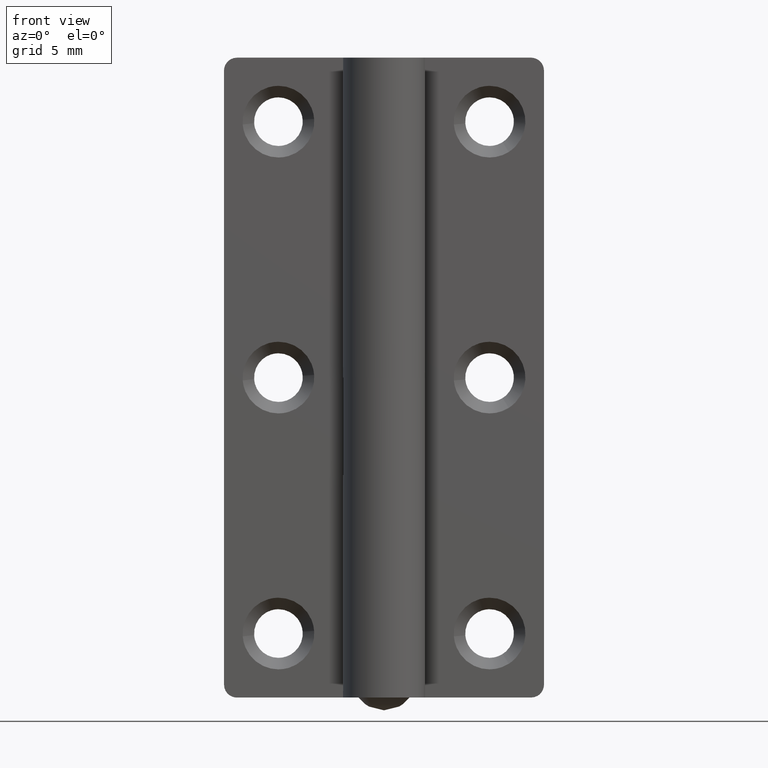
[diagram: clean part render]
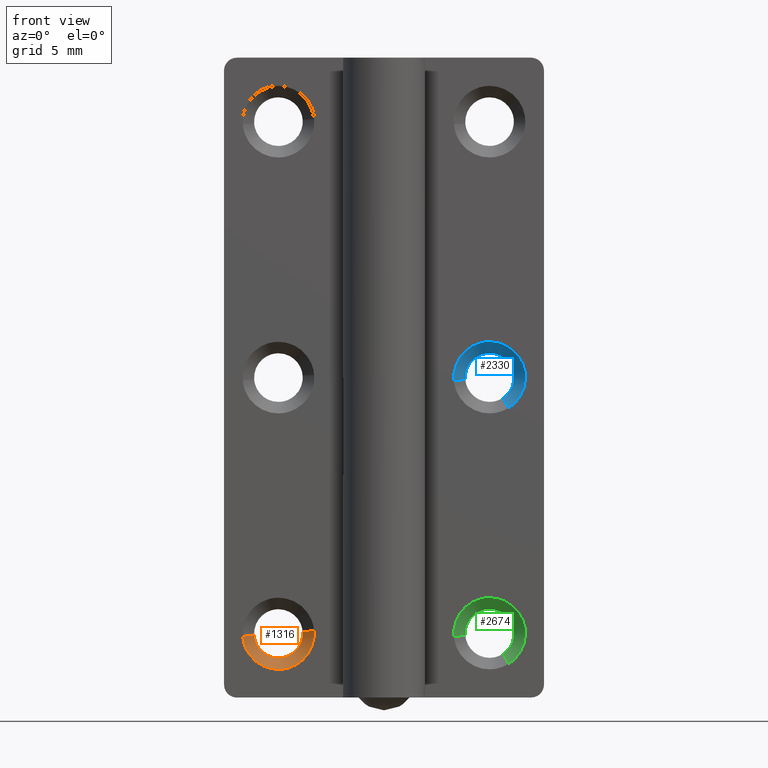
[diagram: same view with three faces highlighted in distinct colors, each labeled with its STEP entity id]
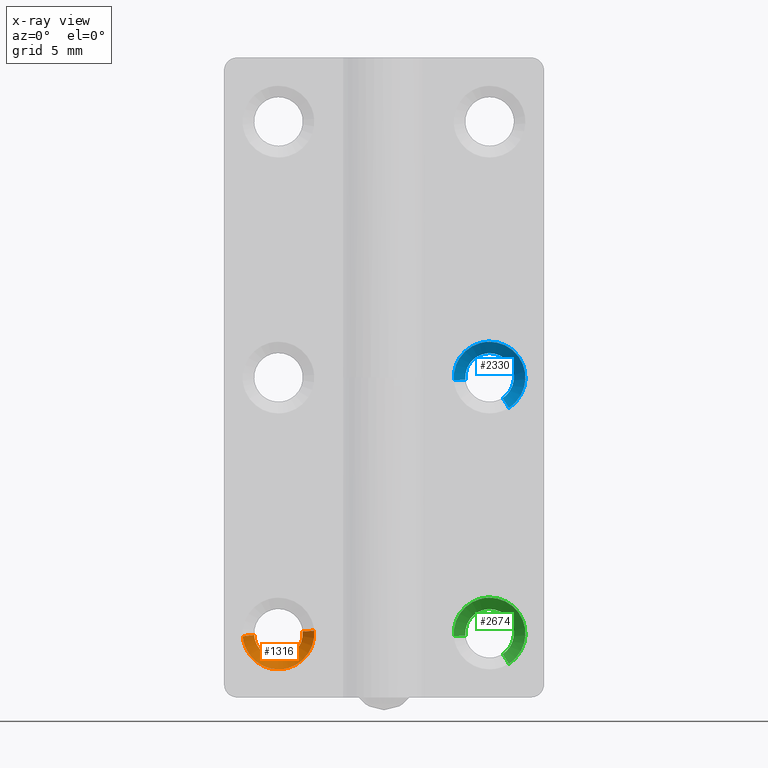
[diagram: x-ray of the same camera — body ghosted, the three highlighted faces saturated]
A machine part, front view with three faces highlighted in distinct colors.
The next image is the same camera in x-ray (body ghosted, the three faces saturated) — at least one of them is partly hidden behind the body in this view.
Their STEP definitions:

[orange] entity #1316 — the highlighted face is a freeform B-spline surface patch.
#1007=CARTESIAN_POINT('',(-6.362408697629784,2.900000035762786,4.783207847482961));
#1008=VERTEX_POINT('',#1007);
#1009=CARTESIAN_POINT('',(-8.250000000000000,2.900000035762786,3.100000083446500));
#1010=VERTEX_POINT('',#1009);
#1011=CARTESIAN_POINT('',(-6.362408697629784,2.900000035762786,4.783207847482962));
#1012=CARTESIAN_POINT('',(-6.555727983767488,2.900000035762785,3.100000083446501));
#1013=CARTESIAN_POINT('',(-8.250000000000000,2.900000035762786,3.100000083446500));
#1021=(BOUNDED_CURVE()B_SPLINE_CURVE(2,(#1011,#1012,#1013),.UNSPECIFIED.,.F.,.U.)B_SPLINE_CURVE_WITH_KNOTS((3,3),(0.269767916658995,0.500000000000000),.UNSPECIFIED.)CURVE()GEOMETRIC_REPRESENTATION_ITEM()RATIONAL_B_SPLINE_CURVE((0.957343419302233,0.730266336144504,1.0))REPRESENTATION_ITEM(''));
#1022=EDGE_CURVE('',#1008,#1010,#1021,.T.);
#1061=CARTESIAN_POINT('',(-10.146456069078599,2.900000035762553,4.884008016516837));
#1062=VERTEX_POINT('',#1061);
#1068=CARTESIAN_POINT('',(-8.250000000000000,2.900000035762786,3.100000083446500));
#1069=CARTESIAN_POINT('',(-10.037341673170596,2.900000035762786,3.100000083446501));
#1070=CARTESIAN_POINT('',(-10.146456069078603,2.900000035762553,4.884008016516837));
#1078=(BOUNDED_CURVE()B_SPLINE_CURVE(2,(#1068,#1069,#1070),.UNSPECIFIED.,.F.,.U.)B_SPLINE_CURVE_WITH_KNOTS((3,3),(0.500000000000000,0.739332983879041),.UNSPECIFIED.)CURVE()GEOMETRIC_REPRESENTATION_ITEM()RATIONAL_B_SPLINE_CURVE((1.0,0.719603967933758,0.976072088045573))REPRESENTATION_ITEM(''));
#1079=EDGE_CURVE('',#1010,#1062,#1078,.T.);
#1106=CARTESIAN_POINT('',(-6.355857149095421,2.900000035760563,5.149072275352674));
#1107=VERTEX_POINT('',#1106);
#1108=CARTESIAN_POINT('',(-6.355857149095421,2.900000035760563,5.149072275352674));
#1109=CARTESIAN_POINT('',(-6.350000083446499,2.900000035762786,5.074651200052760));
#1110=CARTESIAN_POINT('',(-6.350000083446500,2.900000035762786,5.0));
#1111=CARTESIAN_POINT('',(-6.350000083446500,2.900000035762786,4.891248352725606));
#1112=CARTESIAN_POINT('',(-6.362408697629784,2.900000035762786,4.783207847482961));
#1120=(BOUNDED_CURVE()B_SPLINE_CURVE(2,(#1108,#1109,#1110,#1111,#1112),.UNSPECIFIED.,.F.,.U.)B_SPLINE_CURVE_WITH_KNOTS((3,2,3),(0.236331300629739,0.250000000000000,0.269767916658995),.UNSPECIFIED.)CURVE()GEOMETRIC_REPRESENTATION_ITEM()RATIONAL_B_SPLINE_CURVE((0.969723356165495,0.983986122577803,1.0,0.976840445042044,0.957343419302234))REPRESENTATION_ITEM(''));
#1121=EDGE_CURVE('',#1107,#1008,#1120,.T.);
#1209=CARTESIAN_POINT('',(-5.458631513073850,1.999999999974804,5.219685464489362));
#1210=VERTEX_POINT('',#1209);
#1211=CARTESIAN_POINT('',(-6.355857149095421,2.900000035760563,5.149072275352674));
#1212=CARTESIAN_POINT('',(-5.458631513073850,1.999999999974804,5.219685464489362));
#1213=QUASI_UNIFORM_CURVE('',1,(#1211,#1212),.UNSPECIFIED.,.F.,.U.);
#1214=EDGE_CURVE('',#1107,#1210,#1213,.T.);
#1231=CARTESIAN_POINT('',(-11.041368486926149,1.999999999974804,4.780314535510637));
#1232=VERTEX_POINT('',#1231);
#1248=CARTESIAN_POINT('',(-10.146456069078599,2.900000035762553,4.884008016516837));
#1249=CARTESIAN_POINT('',(-11.041368486926149,1.999999999974804,4.780314535510637));
#1250=QUASI_UNIFORM_CURVE('',1,(#1248,#1249),.UNSPECIFIED.,.F.,.U.);
#1251=EDGE_CURVE('',#1062,#1232,#1250,.T.);
#1257=CARTESIAN_POINT('',(-10.126318918563115,2.922500036656857,4.911226836508196));
#1258=CARTESIAN_POINT('',(-10.124030579948229,2.922500036656856,4.882150737561796));
#1259=CARTESIAN_POINT('',(-9.974405264391626,2.922500036656857,2.980980844384884));
#1260=CARTESIAN_POINT('',(-8.102693054388254,2.922500036656856,3.128287789996629));
#1261=CARTESIAN_POINT('',(-6.230980844384884,2.922500036656857,3.275594735608375));
#1262=CARTESIAN_POINT('',(-6.379332755547899,2.922500036656857,5.160584491848390));
#1263=CARTESIAN_POINT('',(-6.380371598147988,2.922500036656855,5.173784238613834));
#1264=CARTESIAN_POINT('',(-11.071286672295416,1.976937499083579,4.866518137967328));
#1265=CARTESIAN_POINT('',(-11.067845861049529,1.976937499083579,4.822798485818514));
#1266=CARTESIAN_POINT('',(-10.842864966574981,1.976937499083579,1.964145178897276));
#1267=CARTESIAN_POINT('',(-8.028505072736129,1.976937499083578,2.185640106161148));
#1268=CARTESIAN_POINT('',(-5.214145178897276,1.976937499083579,2.407135033425019));
#1269=CARTESIAN_POINT('',(-5.437211346185237,1.976937499083579,5.241459424699583));
#1270=CARTESIAN_POINT('',(-5.438773379565198,1.976937499083579,5.261306940630161));
#1278=(BOUNDED_SURFACE()B_SPLINE_SURFACE(2,1,((#1257,#1264),(#1258,#1265),(#1259,#1266),(#1260,#1267),(#1261,#1268),(#1262,#1269),(#1263,#1270)),.UNSPECIFIED.,.F.,.F.,.U.)B_SPLINE_SURFACE_WITH_KNOTS((3,1,2,1,3),(2,2),(0.0,0.104789979667757,4.782193001888751,9.459596024109745,9.506658690076666),(0.0,1.0),.UNSPECIFIED.)GEOMETRIC_REPRESENTATION_ITEM()RATIONAL_B_SPLINE_SURFACE(((1.013123639035796,1.013123639035796),(1.006561819517898,1.006561819517898),(0.707106781186548,0.707106781186548),(1.0,1.0),(0.707106781186548,0.707106781186548),(1.002947006203123,1.002947006203123),(1.005894012406247,1.005894012406247)))REPRESENTATION_ITEM('')SURFACE());
#1279=ORIENTED_EDGE('',*,*,#1121,.T.);
#1280=ORIENTED_EDGE('',*,*,#1022,.T.);
#1281=ORIENTED_EDGE('',*,*,#1079,.T.);
#1282=ORIENTED_EDGE('',*,*,#1251,.T.);
#1283=CARTESIAN_POINT('',(-8.250000000000000,2.0,2.200000047683715));
#1284=VERTEX_POINT('',#1283);
#1285=CARTESIAN_POINT('',(-8.250000000000000,2.0,2.200000047683715));
#1286=CARTESIAN_POINT('',(-10.838293332209973,2.0,2.200000047683716));
#1287=CARTESIAN_POINT('',(-11.041368486926155,1.999999999974804,4.780314535510638));
#1295=(BOUNDED_CURVE()B_SPLINE_CURVE(2,(#1285,#1286,#1287),.UNSPECIFIED.,.F.,.U.)B_SPLINE_CURVE_WITH_KNOTS((3,3),(0.500000000000000,0.736331300609351),.UNSPECIFIED.)CURVE()GEOMETRIC_REPRESENTATION_ITEM()RATIONAL_B_SPLINE_CURVE((1.0,0.723120658632630,0.969723356122949))REPRESENTATION_ITEM(''));
#1296=EDGE_CURVE('',#1284,#1232,#1295,.T.);
#1297=ORIENTED_EDGE('',*,*,#1296,.F.);
#1298=CARTESIAN_POINT('',(-5.458631513073850,1.999999999974804,5.219685464489362));
#1299=CARTESIAN_POINT('',(-5.450000047683716,2.000000000000000,5.110012297939502));
#1300=CARTESIAN_POINT('',(-5.450000047683715,2.0,5.0));
#1301=CARTESIAN_POINT('',(-5.450000047683717,2.0,2.200000047683715));
#1302=CARTESIAN_POINT('',(-8.250000000000000,2.0,2.200000047683715));
#1310=(BOUNDED_CURVE()B_SPLINE_CURVE(2,(#1298,#1299,#1300,#1301,#1302),.UNSPECIFIED.,.F.,.U.)B_SPLINE_CURVE_WITH_KNOTS((3,2,3),(0.236331300609352,0.250000000000000,0.500000000000000),.UNSPECIFIED.)CURVE()GEOMETRIC_REPRESENTATION_ITEM()RATIONAL_B_SPLINE_CURVE((0.969723356122950,0.983986122553918,1.0,0.707106781186547,1.0))REPRESENTATION_ITEM(''));
#1311=EDGE_CURVE('',#1210,#1284,#1310,.T.);
#1312=ORIENTED_EDGE('',*,*,#1311,.F.);
#1313=ORIENTED_EDGE('',*,*,#1214,.F.);
#1314=EDGE_LOOP('',(#1279,#1280,#1281,#1282,#1297,#1312,#1313));
#1315=FACE_OUTER_BOUND('',#1314,.T.);
#1316=ADVANCED_FACE('',(#1315),#1278,.F.);

[blue] entity #2330 — the highlighted face is a freeform B-spline surface patch.
#2194=CARTESIAN_POINT('',(9.259814865336413,2.922500010728838,23.417192307252105));
#2195=CARTESIAN_POINT('',(10.210157727617380,2.922500010728839,24.023501180967280));
#2196=CARTESIAN_POINT('',(10.121712295272360,2.922500010728838,25.147306952322559));
#2197=CARTESIAN_POINT('',(9.974405342949803,2.922500010728839,27.019019247594919));
#2198=CARTESIAN_POINT('',(8.102693047677439,2.922500010728838,26.871712295272360));
#2199=CARTESIAN_POINT('',(6.230980752405075,2.922500010728839,26.724405342949808));
#2200=CARTESIAN_POINT('',(6.378287704727636,2.922500010728838,24.852693047677441));
#2201=CARTESIAN_POINT('',(9.768386379269300,1.976937560826539,22.620045293282136));
#2202=CARTESIAN_POINT('',(11.197348961675432,1.976937560826539,23.531708576405350));
#2203=CARTESIAN_POINT('',(11.064359891707131,1.976937560826539,25.221494927096099));
#2204=CARTESIAN_POINT('',(10.842864964611026,1.976937560826540,28.035854818803227));
#2205=CARTESIAN_POINT('',(8.028505072903899,1.976937560826539,27.814359891707131));
#2206=CARTESIAN_POINT('',(5.214145181196772,1.976937560826540,27.592864964611021));
#2207=CARTESIAN_POINT('',(5.435640108292873,1.976937560826539,24.778505072903901));
#2215=(BOUNDED_SURFACE()B_SPLINE_SURFACE(2,1,((#2194,#2201),(#2195,#2202),(#2196,#2203),(#2197,#2204),(#2198,#2205),(#2199,#2206),(#2200,#2207)),.UNSPECIFIED.,.F.,.F.,.U.)B_SPLINE_SURFACE_WITH_KNOTS((3,2,2,3),(2,2),(0.0,3.180634052701118,7.858037071379234,12.535440090057349),(0.0,1.0),.UNSPECIFIED.)GEOMETRIC_REPRESENTATION_ITEM()RATIONAL_B_SPLINE_SURFACE(((0.872532871172386,0.872532871172386),(0.800832611206852,0.800832611206852),(1.0,1.0),(0.707106781186548,0.707106781186548),(1.0,1.0),(0.707106781186548,0.707106781186548),(1.0,1.0)))REPRESENTATION_ITEM('')SURFACE());
#2216=CARTESIAN_POINT('',(10.136718100089229,2.900000011920930,25.224265045862438));
#2217=VERTEX_POINT('',#2216);
#2218=CARTESIAN_POINT('',(9.271916507707372,2.900000011911130,23.398223907247829));
#2219=VERTEX_POINT('',#2218);
#2220=CARTESIAN_POINT('',(10.136718100089231,2.900000011920930,25.224265045862438));
#2221=CARTESIAN_POINT('',(10.150000000000000,2.900000011920930,25.112525827353387));
#2222=CARTESIAN_POINT('',(10.150000000000000,2.900000011920930,25.0));
#2223=CARTESIAN_POINT('',(10.150000000000000,2.900000011920930,23.958432053810110));
#2224=CARTESIAN_POINT('',(9.271916507707372,2.900000011911129,23.398223907247832));
#2232=(BOUNDED_CURVE()B_SPLINE_CURVE(2,(#2220,#2221,#2222,#2223,#2224),.UNSPECIFIED.,.F.,.U.)B_SPLINE_CURVE_WITH_KNOTS((3,2,3),(0.229562473513029,0.250000000000000,0.407950112598150),.UNSPECIFIED.)CURVE()GEOMETRIC_REPRESENTATION_ITEM()RATIONAL_B_SPLINE_CURVE((0.956026754182760,0.976055948330584,1.0,0.814949932436722,0.863729296936765))REPRESENTATION_ITEM(''));
#2233=EDGE_CURVE('',#2217,#2219,#2232,.T.);
#2234=ORIENTED_EDGE('',*,*,#2233,.T.);
#2235=CARTESIAN_POINT('',(9.755982196063606,2.000000059601041,22.639487903413581));
#2236=VERTEX_POINT('',#2235);
#2237=CARTESIAN_POINT('',(9.271916507707372,2.900000011911130,23.398223907247829));
#2238=CARTESIAN_POINT('',(9.755982196063606,2.000000059601041,22.639487903413581));
#2239=QUASI_UNIFORM_CURVE('',1,(#2237,#2238),.UNSPECIFIED.,.F.,.U.);
#2240=EDGE_CURVE('',#2219,#2236,#2239,.T.);
#2241=ORIENTED_EDGE('',*,*,#2240,.T.);
#2242=CARTESIAN_POINT('',(8.250000000000000,2.000000059604645,27.799999952316291));
#2243=VERTEX_POINT('',#2242);
#2244=CARTESIAN_POINT('',(8.250000000000000,2.000000059604645,27.799999952316291));
#2245=CARTESIAN_POINT('',(11.049999952316288,2.000000059604644,27.799999952316298));
#2246=CARTESIAN_POINT('',(11.049999952316290,2.000000059604645,25.0));
#2247=CARTESIAN_POINT('',(11.049999952316288,2.000000059604644,23.465057789389761));
#2248=CARTESIAN_POINT('',(9.755982196063606,2.000000059601041,22.639487903413581));
#2256=(BOUNDED_CURVE()B_SPLINE_CURVE(2,(#2244,#2245,#2246,#2247,#2248),.UNSPECIFIED.,.F.,.U.)B_SPLINE_CURVE_WITH_KNOTS((3,2,3),(0.0,0.250000000000000,0.407950112619935),.UNSPECIFIED.)CURVE()GEOMETRIC_REPRESENTATION_ITEM()RATIONAL_B_SPLINE_CURVE((1.0,0.707106781186547,1.0,0.814949932411200,0.863729296950220))REPRESENTATION_ITEM(''));
#2257=EDGE_CURVE('',#2243,#2236,#2256,.T.);
#2258=ORIENTED_EDGE('',*,*,#2257,.F.);
#2259=CARTESIAN_POINT('',(5.458631513073849,2.000000059579449,24.780314535510641));
#2260=VERTEX_POINT('',#2259);
#2261=CARTESIAN_POINT('',(5.458631513073849,2.000000059579449,24.780314535510637));
#2262=CARTESIAN_POINT('',(5.450000047683715,2.000000059604645,24.889987702060505));
#2263=CARTESIAN_POINT('',(5.450000047683715,2.000000059604645,25.0));
#2264=CARTESIAN_POINT('',(5.450000047683717,2.000000059604644,27.799999952316298));
#2265=CARTESIAN_POINT('',(8.250000000000000,2.000000059604645,27.799999952316291));
#2273=(BOUNDED_CURVE()B_SPLINE_CURVE(2,(#2261,#2262,#2263,#2264,#2265),.UNSPECIFIED.,.F.,.U.)B_SPLINE_CURVE_WITH_KNOTS((3,2,3),(0.736331300609352,0.750000000000000,1.0),.UNSPECIFIED.)CURVE()GEOMETRIC_REPRESENTATION_ITEM()RATIONAL_B_SPLINE_CURVE((0.969723356122950,0.983986122553918,1.0,0.707106781186547,1.0))REPRESENTATION_ITEM(''));
#2274=EDGE_CURVE('',#2260,#2243,#2273,.T.);
#2275=ORIENTED_EDGE('',*,*,#2274,.F.);
#2276=CARTESIAN_POINT('',(6.355857065900078,2.900000011903625,24.850927717985211));
#2277=VERTEX_POINT('',#2276);
#2278=CARTESIAN_POINT('',(6.355857065900078,2.900000011903625,24.850927717985211));
#2279=CARTESIAN_POINT('',(5.458631513073849,2.000000059579449,24.780314535510641));
#2280=QUASI_UNIFORM_CURVE('',1,(#2278,#2279),.UNSPECIFIED.,.F.,.U.);
#2281=EDGE_CURVE('',#2277,#2260,#2280,.T.);
#2282=ORIENTED_EDGE('',*,*,#2281,.F.);
#2283=CARTESIAN_POINT('',(6.353543882999694,2.900000011920931,24.884007774863491));
#2284=VERTEX_POINT('',#2283);
#2285=CARTESIAN_POINT('',(6.355857065900078,2.900000011903626,24.850927717985215));
#2286=CARTESIAN_POINT('',(6.354556131821386,2.900000011920931,24.867457652928767));
#2287=CARTESIAN_POINT('',(6.353543882999694,2.900000011920931,24.884007774863491));
#2295=(BOUNDED_CURVE()B_SPLINE_CURVE(2,(#2285,#2286,#2287),.UNSPECIFIED.,.F.,.U.)B_SPLINE_CURVE_WITH_KNOTS((3,3),(0.736331300609141,0.739332962238277),.UNSPECIFIED.)CURVE()GEOMETRIC_REPRESENTATION_ITEM()RATIONAL_B_SPLINE_CURVE((0.969723356122510,0.972855475536182,0.976072041665291))REPRESENTATION_ITEM(''));
#2296=EDGE_CURVE('',#2277,#2284,#2295,.T.);
#2297=ORIENTED_EDGE('',*,*,#2296,.T.);
#2298=CARTESIAN_POINT('',(8.250000000000000,2.900000011920930,26.899999999999999));
#2299=VERTEX_POINT('',#2298);
#2300=CARTESIAN_POINT('',(6.353543882999695,2.900000011920931,24.884007774863484));
#2301=CARTESIAN_POINT('',(6.350000000000001,2.900000011920931,24.941949749712339));
#2302=CARTESIAN_POINT('',(6.350000000000001,2.900000011920930,25.0));
#2303=CARTESIAN_POINT('',(6.350000000000001,2.900000011920930,26.900000000000006));
#2304=CARTESIAN_POINT('',(8.250000000000000,2.900000011920930,26.899999999999999));
#2312=(BOUNDED_CURVE()B_SPLINE_CURVE(2,(#2300,#2301,#2302,#2303,#2304),.UNSPECIFIED.,.F.,.U.)B_SPLINE_CURVE_WITH_KNOTS((3,2,3),(0.739332962238277,0.750000000000000,1.0),.UNSPECIFIED.)CURVE()GEOMETRIC_REPRESENTATION_ITEM()RATIONAL_B_SPLINE_CURVE((0.976072041665291,0.987502787899058,1.0,0.707106781186547,1.0))REPRESENTATION_ITEM(''));
#2313=EDGE_CURVE('',#2284,#2299,#2312,.T.);
#2314=ORIENTED_EDGE('',*,*,#2313,.T.);
#2315=CARTESIAN_POINT('',(8.250000000000000,2.900000011920930,26.899999999999999));
#2316=CARTESIAN_POINT('',(9.937531599281302,2.900000011920930,26.900000000000002));
#2317=CARTESIAN_POINT('',(10.136718100089231,2.900000011920931,25.224265045862442));
#2325=(BOUNDED_CURVE()B_SPLINE_CURVE(2,(#2315,#2316,#2317),.UNSPECIFIED.,.F.,.U.)B_SPLINE_CURVE_WITH_KNOTS((3,3),(0.0,0.229562473513029),.UNSPECIFIED.)CURVE()GEOMETRIC_REPRESENTATION_ITEM()RATIONAL_B_SPLINE_CURVE((1.0,0.731050832855964,0.956026754182760))REPRESENTATION_ITEM(''));
#2326=EDGE_CURVE('',#2299,#2217,#2325,.T.);
#2327=ORIENTED_EDGE('',*,*,#2326,.T.);
#2328=EDGE_LOOP('',(#2234,#2241,#2258,#2275,#2282,#2297,#2314,#2327));
#2329=FACE_OUTER_BOUND('',#2328,.T.);
#2330=ADVANCED_FACE('',(#2329),#2215,.F.);

[green] entity #2674 — the highlighted face is a freeform B-spline surface patch.
#2538=CARTESIAN_POINT('',(9.259814865336413,2.922500010728838,3.417192307252108));
#2539=CARTESIAN_POINT('',(10.210157727617380,2.922500010728839,4.023501180967278));
#2540=CARTESIAN_POINT('',(10.121712295272360,2.922500010728838,5.147306952322561));
#2541=CARTESIAN_POINT('',(9.974405342949803,2.922500010728839,7.019019247594925));
#2542=CARTESIAN_POINT('',(8.102693047677439,2.922500010728838,6.871712295272364));
#2543=CARTESIAN_POINT('',(6.230980752405075,2.922500010728839,6.724405342949803));
#2544=CARTESIAN_POINT('',(6.378287704727636,2.922500010728838,4.852693047677439));
#2545=CARTESIAN_POINT('',(9.768386379269300,1.976937560826539,2.620045293282135));
#2546=CARTESIAN_POINT('',(11.197348961675432,1.976937560826539,3.531708576405351));
#2547=CARTESIAN_POINT('',(11.064359891707131,1.976937560826540,5.221494927096101));
#2548=CARTESIAN_POINT('',(10.842864964611026,1.976937560826540,8.035854818803227));
#2549=CARTESIAN_POINT('',(8.028505072903899,1.976937560826540,7.814359891707126));
#2550=CARTESIAN_POINT('',(5.214145181196773,1.976937560826540,7.592864964611024));
#2551=CARTESIAN_POINT('',(5.435640108292874,1.976937560826540,4.778505072903899));
#2559=(BOUNDED_SURFACE()B_SPLINE_SURFACE(2,1,((#2538,#2545),(#2539,#2546),(#2540,#2547),(#2541,#2548),(#2542,#2549),(#2543,#2550),(#2544,#2551)),.UNSPECIFIED.,.F.,.F.,.U.)B_SPLINE_SURFACE_WITH_KNOTS((3,2,2,3),(2,2),(0.0,3.180634052701115,7.858037071379228,12.535440090057341),(0.0,1.0),.UNSPECIFIED.)GEOMETRIC_REPRESENTATION_ITEM()RATIONAL_B_SPLINE_SURFACE(((0.872532871172386,0.872532871172386),(0.800832611206852,0.800832611206852),(1.0,1.0),(0.707106781186548,0.707106781186548),(1.0,1.0),(0.707106781186548,0.707106781186548),(1.0,1.0)))REPRESENTATION_ITEM('')SURFACE());
#2560=CARTESIAN_POINT('',(10.136718100089229,2.900000011920930,5.224265045862440));
#2561=VERTEX_POINT('',#2560);
#2562=CARTESIAN_POINT('',(9.271916507707370,2.900000011911130,3.398223907247829));
#2563=VERTEX_POINT('',#2562);
#2564=CARTESIAN_POINT('',(10.136718100089229,2.900000011920930,5.224265045862440));
#2565=CARTESIAN_POINT('',(10.150000000000000,2.900000011920930,5.112525827353381));
#2566=CARTESIAN_POINT('',(10.150000000000000,2.900000011920930,5.0));
#2567=CARTESIAN_POINT('',(10.150000000000000,2.900000011920930,3.958432053810100));
#2568=CARTESIAN_POINT('',(9.271916507707370,2.900000011911131,3.398223907247829));
#2576=(BOUNDED_CURVE()B_SPLINE_CURVE(2,(#2564,#2565,#2566,#2567,#2568),.UNSPECIFIED.,.F.,.U.)B_SPLINE_CURVE_WITH_KNOTS((3,2,3),(0.229562473513029,0.250000000000000,0.407950112598150),.UNSPECIFIED.)CURVE()GEOMETRIC_REPRESENTATION_ITEM()RATIONAL_B_SPLINE_CURVE((0.956026754182760,0.976055948330583,1.0,0.814949932436722,0.863729296936765))REPRESENTATION_ITEM(''));
#2577=EDGE_CURVE('',#2561,#2563,#2576,.T.);
#2578=ORIENTED_EDGE('',*,*,#2577,.T.);
#2579=CARTESIAN_POINT('',(9.755982196063606,2.000000059601041,2.639487903413580));
#2580=VERTEX_POINT('',#2579);
#2581=CARTESIAN_POINT('',(9.271916507707370,2.900000011911130,3.398223907247829));
#2582=CARTESIAN_POINT('',(9.755982196063606,2.000000059601041,2.639487903413580));
#2583=QUASI_UNIFORM_CURVE('',1,(#2581,#2582),.UNSPECIFIED.,.F.,.U.);
#2584=EDGE_CURVE('',#2563,#2580,#2583,.T.);
#2585=ORIENTED_EDGE('',*,*,#2584,.T.);
#2586=CARTESIAN_POINT('',(8.250000000000000,2.000000059604645,7.799999952316285));
#2587=VERTEX_POINT('',#2586);
#2588=CARTESIAN_POINT('',(8.250000000000000,2.000000059604645,7.799999952316285));
#2589=CARTESIAN_POINT('',(11.049999952316288,2.000000059604644,7.799999952316285));
#2590=CARTESIAN_POINT('',(11.049999952316290,2.000000059604645,5.0));
#2591=CARTESIAN_POINT('',(11.049999952316290,2.000000059604645,3.465057789389764));
#2592=CARTESIAN_POINT('',(9.755982196063606,2.000000059601042,2.639487903413580));
#2600=(BOUNDED_CURVE()B_SPLINE_CURVE(2,(#2588,#2589,#2590,#2591,#2592),.UNSPECIFIED.,.F.,.U.)B_SPLINE_CURVE_WITH_KNOTS((3,2,3),(0.0,0.250000000000000,0.407950112619935),.UNSPECIFIED.)CURVE()GEOMETRIC_REPRESENTATION_ITEM()RATIONAL_B_SPLINE_CURVE((1.0,0.707106781186547,1.0,0.814949932411200,0.863729296950220))REPRESENTATION_ITEM(''));
#2601=EDGE_CURVE('',#2587,#2580,#2600,.T.);
#2602=ORIENTED_EDGE('',*,*,#2601,.F.);
#2603=CARTESIAN_POINT('',(5.458631513073850,2.000000059579449,4.780314535510637));
#2604=VERTEX_POINT('',#2603);
#2605=CARTESIAN_POINT('',(5.458631513073850,2.000000059579449,4.780314535510637));
#2606=CARTESIAN_POINT('',(5.450000047683715,2.000000059604645,4.889987702060498));
#2607=CARTESIAN_POINT('',(5.450000047683715,2.000000059604645,5.0));
#2608=CARTESIAN_POINT('',(5.450000047683717,2.000000059604644,7.799999952316285));
#2609=CARTESIAN_POINT('',(8.250000000000000,2.000000059604645,7.799999952316285));
#2617=(BOUNDED_CURVE()B_SPLINE_CURVE(2,(#2605,#2606,#2607,#2608,#2609),.UNSPECIFIED.,.F.,.U.)B_SPLINE_CURVE_WITH_KNOTS((3,2,3),(0.736331300609352,0.750000000000000,1.0),.UNSPECIFIED.)CURVE()GEOMETRIC_REPRESENTATION_ITEM()RATIONAL_B_SPLINE_CURVE((0.969723356122949,0.983986122553918,1.0,0.707106781186547,1.0))REPRESENTATION_ITEM(''));
#2618=EDGE_CURVE('',#2604,#2587,#2617,.T.);
#2619=ORIENTED_EDGE('',*,*,#2618,.F.);
#2620=CARTESIAN_POINT('',(6.355857065900079,2.900000011903625,4.850927717985209));
#2621=VERTEX_POINT('',#2620);
#2622=CARTESIAN_POINT('',(6.355857065900079,2.900000011903625,4.850927717985209));
#2623=CARTESIAN_POINT('',(5.458631513073850,2.000000059579449,4.780314535510637));
#2624=QUASI_UNIFORM_CURVE('',1,(#2622,#2623),.UNSPECIFIED.,.F.,.U.);
#2625=EDGE_CURVE('',#2621,#2604,#2624,.T.);
#2626=ORIENTED_EDGE('',*,*,#2625,.F.);
#2627=CARTESIAN_POINT('',(6.353543882999694,2.900000011920930,4.884007774863489));
#2628=VERTEX_POINT('',#2627);
#2629=CARTESIAN_POINT('',(6.355857065900078,2.900000011903625,4.850927717985209));
#2630=CARTESIAN_POINT('',(6.354556131821387,2.900000011920932,4.867457652928764));
#2631=CARTESIAN_POINT('',(6.353543882999694,2.900000011920930,4.884007774863489));
#2639=(BOUNDED_CURVE()B_SPLINE_CURVE(2,(#2629,#2630,#2631),.UNSPECIFIED.,.F.,.U.)B_SPLINE_CURVE_WITH_KNOTS((3,3),(0.736331300609141,0.739332962238277),.UNSPECIFIED.)CURVE()GEOMETRIC_REPRESENTATION_ITEM()RATIONAL_B_SPLINE_CURVE((0.969723356122509,0.972855475536181,0.976072041665290))REPRESENTATION_ITEM(''));
#2640=EDGE_CURVE('',#2621,#2628,#2639,.T.);
#2641=ORIENTED_EDGE('',*,*,#2640,.T.);
#2642=CARTESIAN_POINT('',(8.250000000000000,2.900000011920930,6.900000000000000));
#2643=VERTEX_POINT('',#2642);
#2644=CARTESIAN_POINT('',(6.353543882999695,2.900000011920931,4.884007774863489));
#2645=CARTESIAN_POINT('',(6.350000000000001,2.900000011920931,4.941949749712342));
#2646=CARTESIAN_POINT('',(6.350000000000001,2.900000011920930,5.0));
#2647=CARTESIAN_POINT('',(6.350000000000001,2.900000011920930,6.900000000000000));
#2648=CARTESIAN_POINT('',(8.250000000000000,2.900000011920930,6.900000000000000));
#2656=(BOUNDED_CURVE()B_SPLINE_CURVE(2,(#2644,#2645,#2646,#2647,#2648),.UNSPECIFIED.,.F.,.U.)B_SPLINE_CURVE_WITH_KNOTS((3,2,3),(0.739332962238277,0.750000000000000,1.0),.UNSPECIFIED.)CURVE()GEOMETRIC_REPRESENTATION_ITEM()RATIONAL_B_SPLINE_CURVE((0.976072041665292,0.987502787899058,1.0,0.707106781186547,1.0))REPRESENTATION_ITEM(''));
#2657=EDGE_CURVE('',#2628,#2643,#2656,.T.);
#2658=ORIENTED_EDGE('',*,*,#2657,.T.);
#2659=CARTESIAN_POINT('',(8.250000000000000,2.900000011920930,6.900000000000000));
#2660=CARTESIAN_POINT('',(9.937531599281302,2.900000011920930,6.900000000000000));
#2661=CARTESIAN_POINT('',(10.136718100089229,2.900000011920930,5.224265045862441));
#2669=(BOUNDED_CURVE()B_SPLINE_CURVE(2,(#2659,#2660,#2661),.UNSPECIFIED.,.F.,.U.)B_SPLINE_CURVE_WITH_KNOTS((3,3),(0.0,0.229562473513029),.UNSPECIFIED.)CURVE()GEOMETRIC_REPRESENTATION_ITEM()RATIONAL_B_SPLINE_CURVE((1.0,0.731050832855964,0.956026754182760))REPRESENTATION_ITEM(''));
#2670=EDGE_CURVE('',#2643,#2561,#2669,.T.);
#2671=ORIENTED_EDGE('',*,*,#2670,.T.);
#2672=EDGE_LOOP('',(#2578,#2585,#2602,#2619,#2626,#2641,#2658,#2671));
#2673=FACE_OUTER_BOUND('',#2672,.T.);
#2674=ADVANCED_FACE('',(#2673),#2559,.F.);